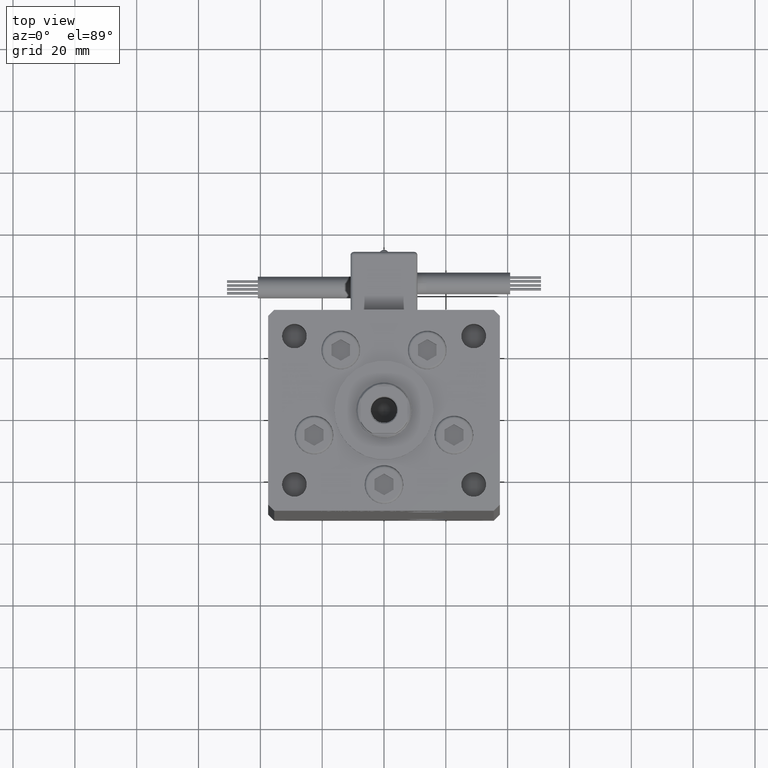
[diagram: clean part render]
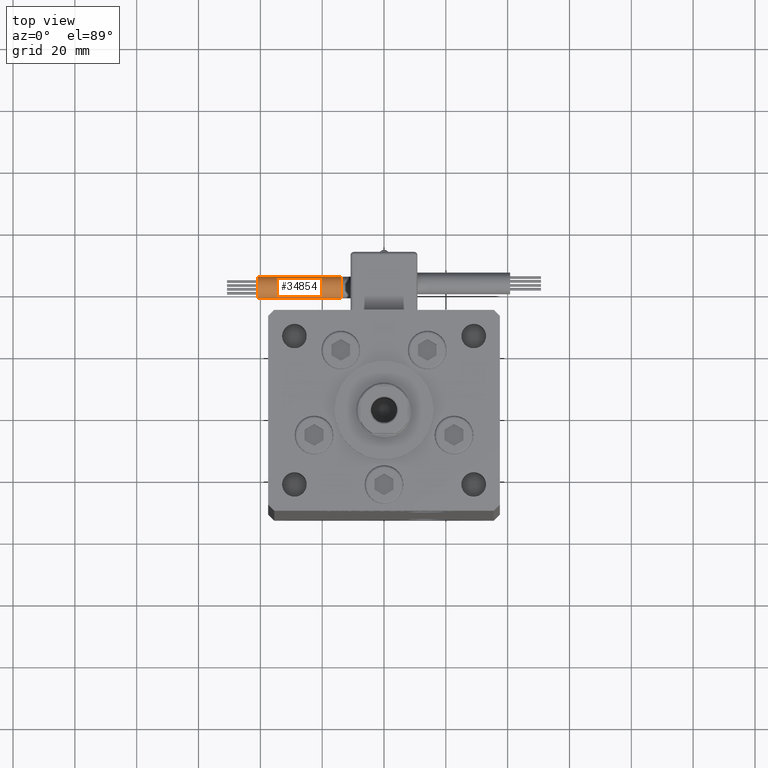
[diagram: same view with one face highlighted and labeled with its STEP entity id]
A machine part, top view. The second image highlights one B-rep face of the part: STEP entity #34854.
In plain terms, the highlighted cylindrical surface (edge-blend (fillet) strip) has radius 3.5 mm, axis along (-1, -0, 0).
Its self-contained STEP definition (entity closure, byte-faithful):
#57 = VERTEX_POINT ( 'NONE', #15953 ) ;
#163 = CARTESIAN_POINT ( 'NONE',  ( 13.79999999999999893, 42.00000000000000000, -65.00000000000000000 ) ) ;
#803 = DIRECTION ( 'NONE',  ( 1.000000000000000000, 0.000000000000000000, 2.220446049250000002E-16 ) ) ;
#1686 = CIRCLE ( 'NONE', #48043, 3.500000000000003109 ) ;
#1739 = EDGE_CURVE ( 'NONE', #36320, #57, #17836, .T. ) ;
#2040 = ORIENTED_EDGE ( 'NONE', *, *, #25186, .F. ) ;
#2506 = CARTESIAN_POINT ( 'NONE',  ( 40.80000000000000426, 42.00000000000000000, -65.00000000000000000 ) ) ;
#3254 = CARTESIAN_POINT ( 'NONE',  ( 13.79999999999999893, 45.50000000000000711, -65.00000000000000000 ) ) ;
#5005 = DIRECTION ( 'NONE',  ( 1.000000000000000000, -2.599999999999999847E-16, 2.220446049250000002E-16 ) ) ;
#5269 = CARTESIAN_POINT ( 'NONE',  ( 13.79999999999999893, 42.00000000000000000, -65.00000000000000000 ) ) ;
#7209 = CARTESIAN_POINT ( 'NONE',  ( 13.79999999999999716, 38.50000000000000000, -65.00000000000000000 ) ) ;
#7826 = CIRCLE ( 'NONE', #38175, 3.500000000000003109 ) ;
#9467 = DIRECTION ( 'NONE',  ( 0.000000000000000000, 0.000000000000000000, -1.000000000000000000 ) ) ;
#10893 = DIRECTION ( 'NONE',  ( 0.000000000000000000, 0.000000000000000000, -1.000000000000000000 ) ) ;
#11193 = CARTESIAN_POINT ( 'NONE',  ( 13.79999999999999893, 42.00000000000000000, -68.50000000000000000 ) ) ;
#12219 = LINE ( 'NONE', #7209, #16970 ) ;
#13666 = CARTESIAN_POINT ( 'NONE',  ( 13.79999999999999893, 42.00000000000000000, -65.00000000000000000 ) ) ;
#15814 = ORIENTED_EDGE ( 'NONE', *, *, #30565, .F. ) ;
#15953 = CARTESIAN_POINT ( 'NONE',  ( 40.80000000000000426, 45.50000000000000711, -65.00000000000000000 ) ) ;
#16902 = DIRECTION ( 'NONE',  ( 0.000000000000000000, 0.000000000000000000, -1.000000000000000000 ) ) ;
#16970 = VECTOR ( 'NONE', #20583, 1000.000000000000000 ) ;
#17175 = DIRECTION ( 'NONE',  ( 1.000000000000000000, 0.000000000000000000, 2.220446049250000002E-16 ) ) ;
#17317 = FACE_OUTER_BOUND ( 'NONE', #23725, .T. ) ;
#17560 = CARTESIAN_POINT ( 'NONE',  ( 13.80000000000000071, 45.50000000000000711, -65.00000000000000000 ) ) ;
#17836 = LINE ( 'NONE', #17560, #36565 ) ;
#20583 = DIRECTION ( 'NONE',  ( 1.000000000000000000, -2.599999999999999847E-16, 2.220446049250000002E-16 ) ) ;
#21502 = DIRECTION ( 'NONE',  ( -4.956352788505158337E-16, -1.000000000000000000, 0.000000000000000000 ) ) ;
#23693 = EDGE_CURVE ( 'NONE', #44840, #36320, #7826, .T. ) ;
#23725 = EDGE_LOOP ( 'NONE', ( #52885, #30755, #45816, #2040, #15814 ) ) ;
#23921 = CIRCLE ( 'NONE', #38213, 3.500000000000003109 ) ;
#25186 = EDGE_CURVE ( 'NONE', #45062, #57, #23921, .T. ) ;
#25922 = EDGE_CURVE ( 'NONE', #41319, #44840, #1686, .T. ) ;
#26533 = DIRECTION ( 'NONE',  ( 1.000000000000000000, -2.599999999999999847E-16, 2.220446049250000002E-16 ) ) ;
#30565 = EDGE_CURVE ( 'NONE', #41319, #45062, #12219, .T. ) ;
#30755 = ORIENTED_EDGE ( 'NONE', *, *, #23693, .T. ) ;
#31356 = CARTESIAN_POINT ( 'NONE',  ( 13.79999999999999893, 38.50000000000000000, -65.00000000000000000 ) ) ;
#32277 = AXIS2_PLACEMENT_3D ( 'NONE', #13666, #26533, #21502 ) ;
#32654 = DIRECTION ( 'NONE',  ( 1.000000000000000000, 0.000000000000000000, 2.220446049250000002E-16 ) ) ;
#32892 = CARTESIAN_POINT ( 'NONE',  ( 40.80000000000000426, 38.50000000000000000, -65.00000000000000000 ) ) ;
#34854 = ADVANCED_FACE ( 'NONE', ( #17317 ), #35196, .T. ) ;
#35196 = CYLINDRICAL_SURFACE ( 'NONE', #32277, 3.500000000000003109 ) ;
#36320 = VERTEX_POINT ( 'NONE', #3254 ) ;
#36565 = VECTOR ( 'NONE', #5005, 1000.000000000000000 ) ;
#38175 = AXIS2_PLACEMENT_3D ( 'NONE', #163, #17175, #16902 ) ;
#38213 = AXIS2_PLACEMENT_3D ( 'NONE', #2506, #32654, #10893 ) ;
#41319 = VERTEX_POINT ( 'NONE', #31356 ) ;
#44840 = VERTEX_POINT ( 'NONE', #11193 ) ;
#45062 = VERTEX_POINT ( 'NONE', #32892 ) ;
#45816 = ORIENTED_EDGE ( 'NONE', *, *, #1739, .T. ) ;
#48043 = AXIS2_PLACEMENT_3D ( 'NONE', #5269, #803, #9467 ) ;
#52885 = ORIENTED_EDGE ( 'NONE', *, *, #25922, .T. ) ;